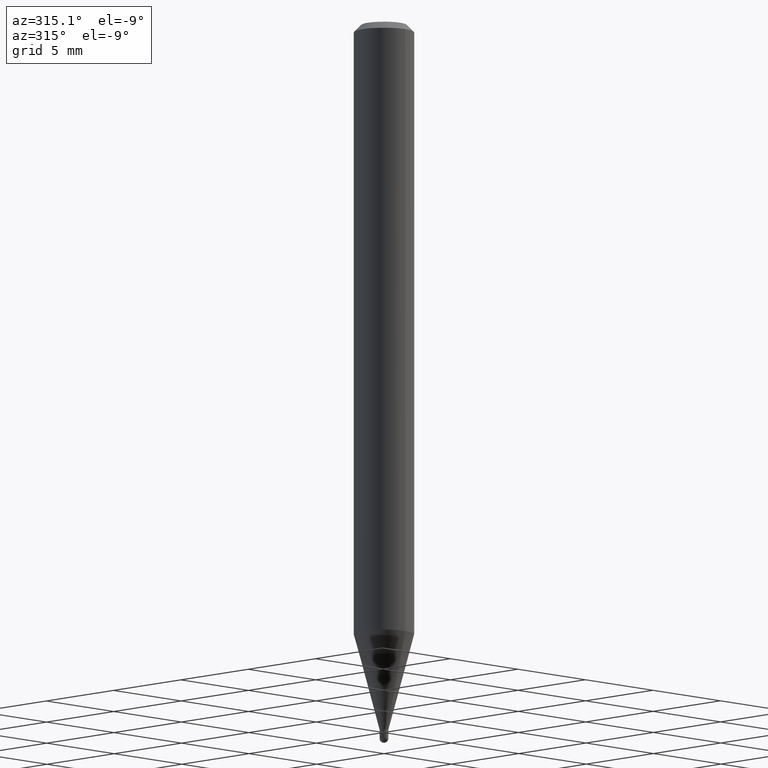
[diagram: clean part render]
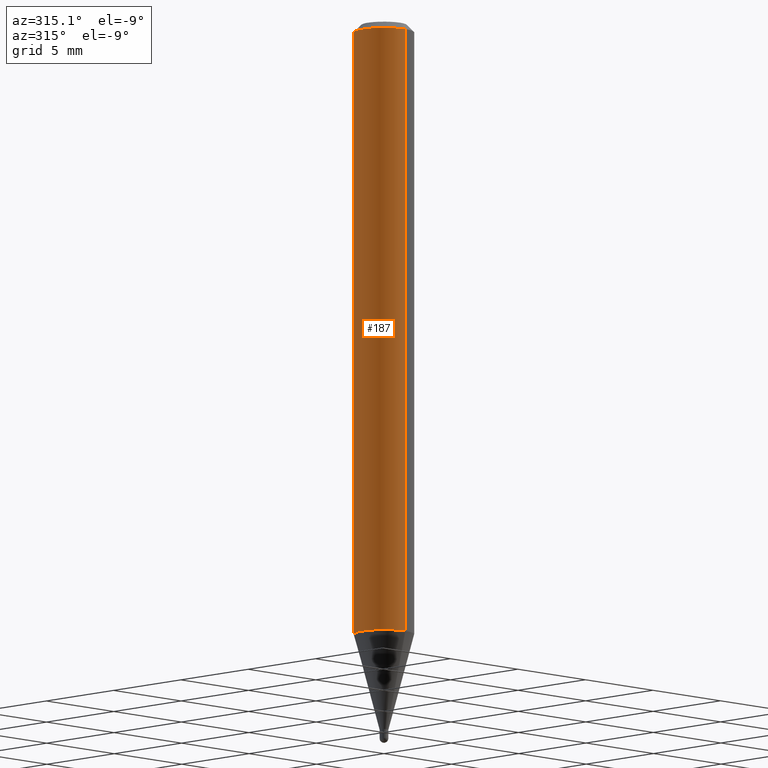
[diagram: same view with one face highlighted and labeled with its STEP entity id]
A machine part, auxiliary view. The second image highlights one B-rep face of the part: STEP entity #187.
In plain terms, the highlighted cylindrical surface (edge-blend (fillet) strip) has radius 1.5875 mm, axis along (-0, 0, 1).
Its self-contained STEP definition (entity closure, byte-faithful):
#2 = DIRECTION ( 'NONE',  ( -2.445461654615416664E-29, 3.491491580298026496E-15, 1.000000000000000000 ) ) ;
#11 = ORIENTED_EDGE ( 'NONE', *, *, #376, .F. ) ;
#23 = CARTESIAN_POINT ( 'NONE',  ( 3.668192481923141303E-31, -5.237237370447062670E-17, -0.01500000000000006710 ) ) ;
#33 = CIRCLE ( 'NONE', #398, 0.06250000000000000000 ) ;
#49 = DIRECTION ( 'NONE',  ( -6.982962677686265922E-15, -1.000000000000000000, 3.483106191921935554E-15 ) ) ;
#63 = ORIENTED_EDGE ( 'NONE', *, *, #98, .T. ) ;
#74 = CARTESIAN_POINT ( 'NONE',  ( 3.113892605098765118E-29, -4.445839415283910039E-15, -1.273335281795072271 ) ) ;
#98 = EDGE_CURVE ( 'NONE', #103, #324, #266, .T. ) ;
#99 = CARTESIAN_POINT ( 'NONE',  ( 4.440892098500935790E-16, 0.06249999999999554523, -1.273335281795072493 ) ) ;
#103 = VERTEX_POINT ( 'NONE', #507 ) ;
#107 = DIRECTION ( 'NONE',  ( -2.445461654615416664E-29, 3.491491580298026496E-15, 1.000000000000000000 ) ) ;
#118 = CARTESIAN_POINT ( 'NONE',  ( -4.364351673553912750E-16, -0.06250000000000005551, -0.01499999999999984852 ) ) ;
#125 = ORIENTED_EDGE ( 'NONE', *, *, #503, .F. ) ;
#136 = EDGE_LOOP ( 'NONE', ( #11, #150, #63, #125 ) ) ;
#150 = ORIENTED_EDGE ( 'NONE', *, *, #156, .T. ) ;
#151 = AXIS2_PLACEMENT_3D ( 'NONE', #280, #237, #165 ) ;
#156 = EDGE_CURVE ( 'NONE', #496, #103, #367, .T. ) ;
#165 = DIRECTION ( 'NONE',  ( -6.982962677686265922E-15, -1.000000000000000000, 3.491491580298026496E-15 ) ) ;
#181 = DIRECTION ( 'NONE',  ( -2.445461654615416664E-29, 3.491491580298026496E-15, 1.000000000000000000 ) ) ;
#187 = ADVANCED_FACE ( 'NONE', ( #436 ), #242, .T. ) ;
#214 = DIRECTION ( 'NONE',  ( -2.445461654615416664E-29, 3.491491580298026496E-15, 1.000000000000000000 ) ) ;
#237 = DIRECTION ( 'NONE',  ( -2.445461654615416664E-29, 3.491491580298026496E-15, 1.000000000000000000 ) ) ;
#242 = CYLINDRICAL_SURFACE ( 'NONE', #151, 0.06250000000000000000 ) ;
#266 = LINE ( 'NONE', #304, #492 ) ;
#270 = DIRECTION ( 'NONE',  ( -6.982962677686265922E-15, -1.000000000000000000, 4.370956789862821150E-15 ) ) ;
#273 = AXIS2_PLACEMENT_3D ( 'NONE', #74, #2, #270 ) ;
#280 = CARTESIAN_POINT ( 'NONE',  ( 0.000000000000000000, 0.000000000000000000, 0.000000000000000000 ) ) ;
#304 = CARTESIAN_POINT ( 'NONE',  ( -4.364351673553916201E-16, -0.06250000000000000000, 2.182182237686266560E-16 ) ) ;
#324 = VERTEX_POINT ( 'NONE', #118 ) ;
#334 = CARTESIAN_POINT ( 'NONE',  ( 4.440892098500625669E-16, 0.06250000000000000000, -2.182182237686266560E-16 ) ) ;
#367 = CIRCLE ( 'NONE', #273, 0.06250000000000000000 ) ;
#376 = EDGE_CURVE ( 'NONE', #496, #485, #421, .T. ) ;
#398 = AXIS2_PLACEMENT_3D ( 'NONE', #23, #181, #49 ) ;
#409 = CARTESIAN_POINT ( 'NONE',  ( 4.440892098500938748E-16, 0.06249999999999995143, -0.01500000000000028394 ) ) ;
#421 = LINE ( 'NONE', #334, #478 ) ;
#436 = FACE_OUTER_BOUND ( 'NONE', #136, .T. ) ;
#478 = VECTOR ( 'NONE', #214, 39.37007874015748143 ) ;
#485 = VERTEX_POINT ( 'NONE', #409 ) ;
#492 = VECTOR ( 'NONE', #107, 39.37007874015748143 ) ;
#496 = VERTEX_POINT ( 'NONE', #99 ) ;
#503 = EDGE_CURVE ( 'NONE', #485, #324, #33, .T. ) ;
#507 = CARTESIAN_POINT ( 'NONE',  ( -4.364351673553605587E-16, -0.06250000000000444089, -1.273335281795072049 ) ) ;